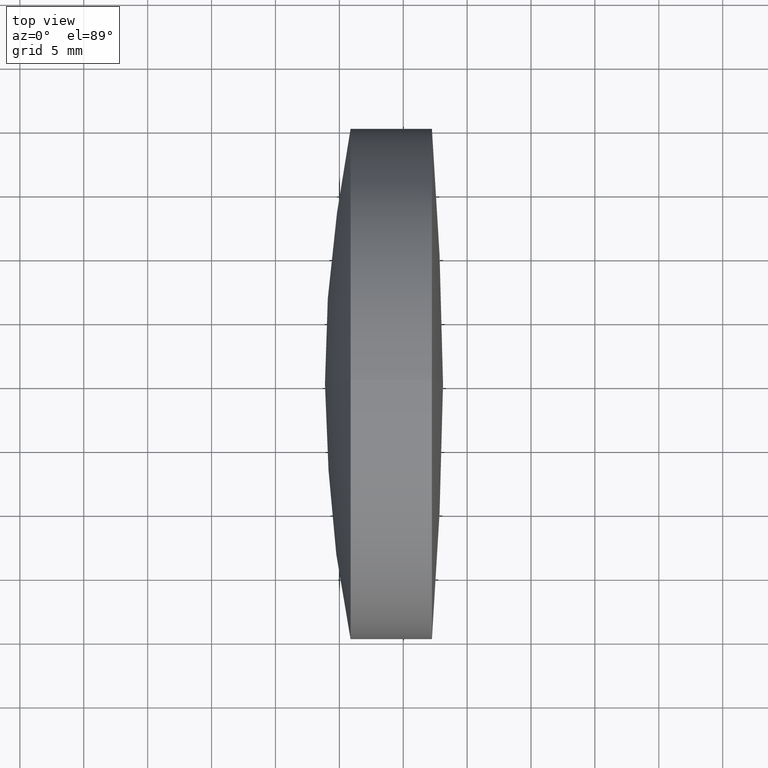
[diagram: clean part render]
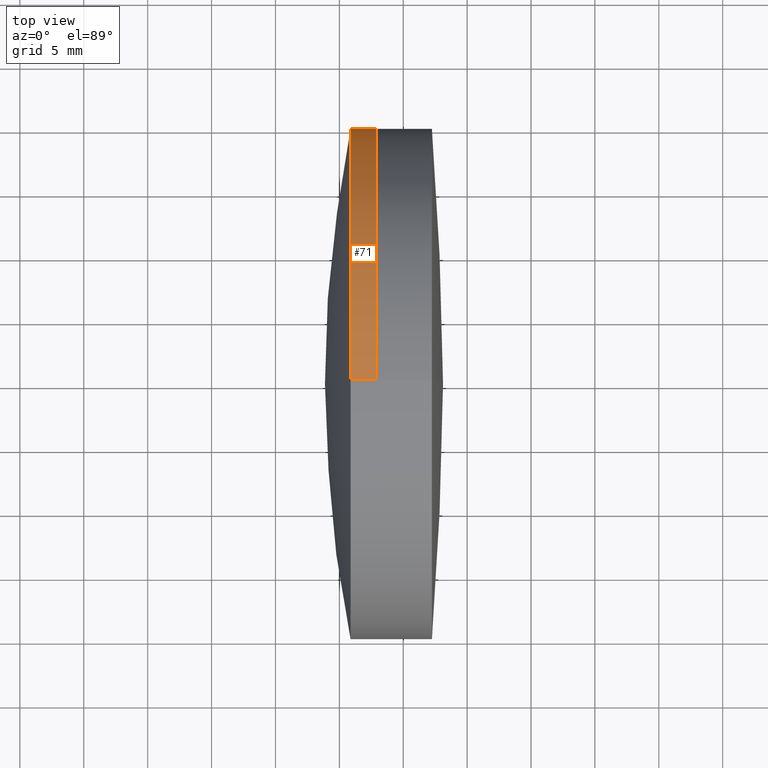
[diagram: same view with one face highlighted and labeled with its STEP entity id]
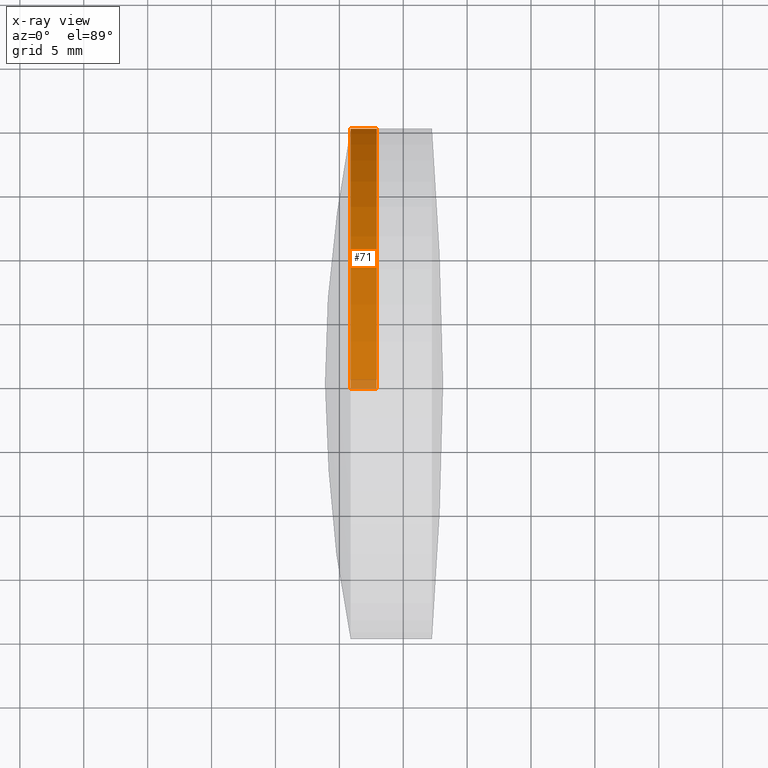
[diagram: x-ray of the same camera — body ghosted, the highlighted face saturated]
A machine part, top view. The second image highlights one B-rep face of the part: STEP entity #71.
The next image is the same camera in x-ray: the body ghosted, the highlighted face saturated — about 3% of this face is hidden behind the body in this view.
In plain terms, the highlighted cylindrical surface (partial cylindrical patch) has radius 20 mm, axis along (-1, -0, -0).
Its self-contained STEP definition (entity closure, byte-faithful):
#8 = ORIENTED_EDGE ( 'NONE', *, *, #127, .T. ) ;
#12 = EDGE_LOOP ( 'NONE', ( #8, #291, #166, #93 ) ) ;
#20 = VERTEX_POINT ( 'NONE', #186 ) ;
#22 = CYLINDRICAL_SURFACE ( 'NONE', #306, 20.00000000000000700 ) ;
#26 = CARTESIAN_POINT ( 'NONE',  ( 280.8783964741982100, 0.0000000000000000000, 0.0000000000000000000 ) ) ;
#35 = CARTESIAN_POINT ( 'NONE',  ( 282.9165680011502700, 0.0000000000000000000, 20.00000000000000700 ) ) ;
#48 = AXIS2_PLACEMENT_3D ( 'NONE', #283, #91, #259 ) ;
#50 = CARTESIAN_POINT ( 'NONE',  ( 282.9165680011502700, 2.449293598294707300E-015, -20.00000000000000700 ) ) ;
#56 = CARTESIAN_POINT ( 'NONE',  ( 124.5233095260452400, 2.449293598294707300E-015, -20.00000000000000700 ) ) ;
#58 = AXIS2_PLACEMENT_3D ( 'NONE', #26, #187, #346 ) ;
#71 = ADVANCED_FACE ( 'NONE', ( #304 ), #22, .T. ) ;
#91 = DIRECTION ( 'NONE',  ( -1.000000000000000000, -0.0000000000000000000, -0.0000000000000000000 ) ) ;
#93 = ORIENTED_EDGE ( 'NONE', *, *, #335, .F. ) ;
#97 = DIRECTION ( 'NONE',  ( 0.0000000000000000000, 0.0000000000000000000, 1.000000000000000000 ) ) ;
#127 = EDGE_CURVE ( 'NONE', #140, #336, #239, .T. ) ;
#137 = CARTESIAN_POINT ( 'NONE',  ( 124.5233095260452400, 0.0000000000000000000, 20.00000000000000700 ) ) ;
#140 = VERTEX_POINT ( 'NONE', #35 ) ;
#166 = ORIENTED_EDGE ( 'NONE', *, *, #331, .F. ) ;
#179 = CIRCLE ( 'NONE', #58, 20.00000000000000700 ) ;
#186 = CARTESIAN_POINT ( 'NONE',  ( 280.8783964741982100, -2.449293598294705300E-015, 19.99999999999999600 ) ) ;
#187 = DIRECTION ( 'NONE',  ( -1.000000000000000000, -0.0000000000000000000, -0.0000000000000000000 ) ) ;
#195 = DIRECTION ( 'NONE',  ( -1.000000000000000000, -0.0000000000000000000, -0.0000000000000000000 ) ) ;
#202 = CARTESIAN_POINT ( 'NONE',  ( 124.5233095260452400, 0.0000000000000000000, 0.0000000000000000000 ) ) ;
#211 = LINE ( 'NONE', #56, #233 ) ;
#214 = VERTEX_POINT ( 'NONE', #326 ) ;
#233 = VECTOR ( 'NONE', #195, 1000.000000000000000 ) ;
#235 = VECTOR ( 'NONE', #295, 1000.000000000000000 ) ;
#239 = CIRCLE ( 'NONE', #48, 20.00000000000000700 ) ;
#258 = EDGE_CURVE ( 'NONE', #336, #214, #211, .T. ) ;
#259 = DIRECTION ( 'NONE',  ( 0.0000000000000000000, 0.0000000000000000000, 1.000000000000000000 ) ) ;
#266 = LINE ( 'NONE', #137, #235 ) ;
#283 = CARTESIAN_POINT ( 'NONE',  ( 282.9165680011502700, 0.0000000000000000000, 0.0000000000000000000 ) ) ;
#291 = ORIENTED_EDGE ( 'NONE', *, *, #258, .T. ) ;
#295 = DIRECTION ( 'NONE',  ( -1.000000000000000000, -0.0000000000000000000, -0.0000000000000000000 ) ) ;
#304 = FACE_OUTER_BOUND ( 'NONE', #12, .T. ) ;
#306 = AXIS2_PLACEMENT_3D ( 'NONE', #202, #309, #97 ) ;
#309 = DIRECTION ( 'NONE',  ( -1.000000000000000000, -0.0000000000000000000, -0.0000000000000000000 ) ) ;
#326 = CARTESIAN_POINT ( 'NONE',  ( 280.8783964741982100, 0.0000000000000000000, -19.99999999999998900 ) ) ;
#331 = EDGE_CURVE ( 'NONE', #20, #214, #179, .T. ) ;
#335 = EDGE_CURVE ( 'NONE', #140, #20, #266, .T. ) ;
#336 = VERTEX_POINT ( 'NONE', #50 ) ;
#346 = DIRECTION ( 'NONE',  ( 0.0000000000000000000, 0.0000000000000000000, 1.000000000000000000 ) ) ;